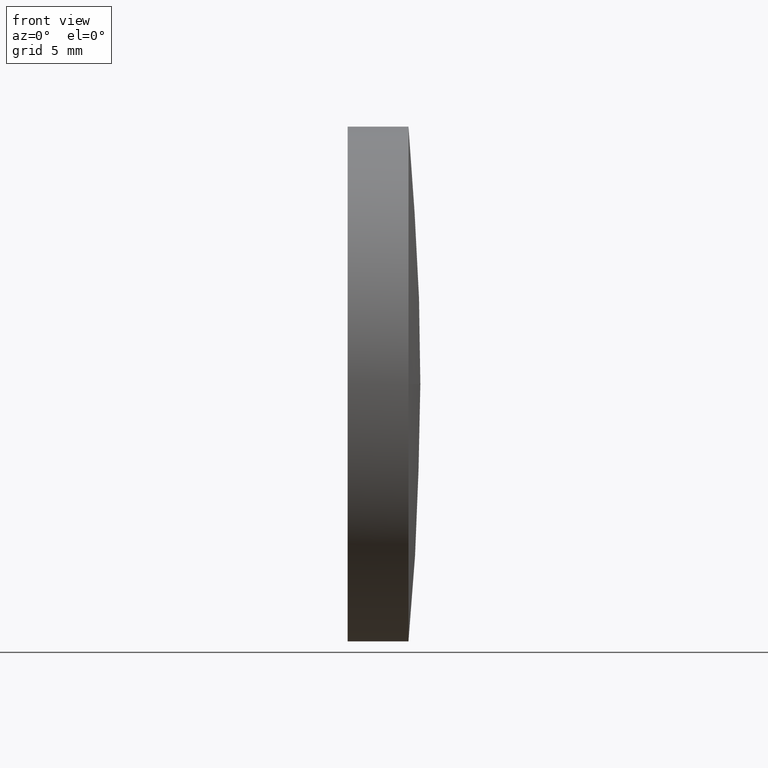
[diagram: clean part render]
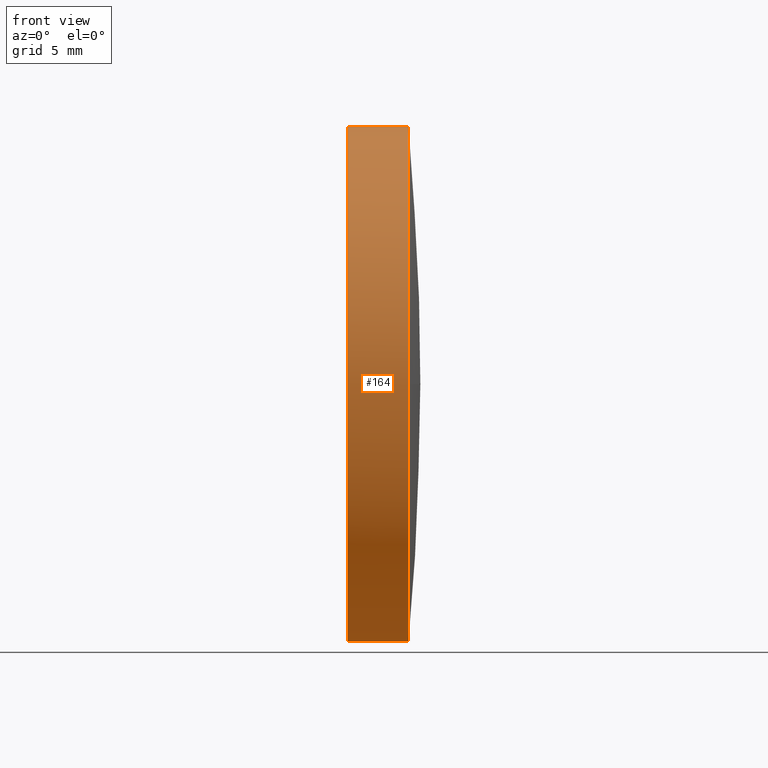
[diagram: same view with one face highlighted and labeled with its STEP entity id]
A machine part, front view. The second image highlights one B-rep face of the part: STEP entity #164.
In plain terms, the highlighted cylindrical surface (partial cylindrical patch) has radius 12.7 mm, axis along (-1, -0, -0).
Its self-contained STEP definition (entity closure, byte-faithful):
#4 = AXIS2_PLACEMENT_3D ( 'NONE', #93, #135, #31 ) ;
#5 = LINE ( 'NONE', #76, #54 ) ;
#7 = EDGE_CURVE ( 'NONE', #142, #44, #5, .T. ) ;
#9 = ORIENTED_EDGE ( 'NONE', *, *, #24, .T. ) ;
#13 = CARTESIAN_POINT ( 'NONE',  ( 118.7740777732635700, 65.23355492641219700, 0.0000000000000000000 ) ) ;
#16 = CIRCLE ( 'NONE', #138, 12.70000000000000300 ) ;
#20 = VERTEX_POINT ( 'NONE', #163 ) ;
#24 = EDGE_CURVE ( 'NONE', #80, #119, #141, .T. ) ;
#27 = DIRECTION ( 'NONE',  ( -1.000000000000000000, -0.0000000000000000000, -0.0000000000000000000 ) ) ;
#31 = DIRECTION ( 'NONE',  ( 0.0000000000000000000, 0.0000000000000000000, 1.000000000000000000 ) ) ;
#36 = EDGE_CURVE ( 'NONE', #80, #20, #108, .T. ) ;
#38 = DIRECTION ( 'NONE',  ( 0.0000000000000000000, 0.0000000000000000000, 1.000000000000000000 ) ) ;
#39 = CARTESIAN_POINT ( 'NONE',  ( 115.7736064308381300, 65.23355492641219700, 12.70000000000000300 ) ) ;
#40 = CARTESIAN_POINT ( 'NONE',  ( 110.1653732284884500, 65.23355492641219700, -12.70000000000000300 ) ) ;
#44 = VERTEX_POINT ( 'NONE', #39 ) ;
#49 = ORIENTED_EDGE ( 'NONE', *, *, #36, .F. ) ;
#53 = CARTESIAN_POINT ( 'NONE',  ( 118.7740777732635700, 65.23355492641219700, 0.0000000000000000000 ) ) ;
#54 = VECTOR ( 'NONE', #149, 1000.000000000000000 ) ;
#57 = DIRECTION ( 'NONE',  ( 0.0000000000000000000, 0.0000000000000000000, 1.000000000000000000 ) ) ;
#71 = EDGE_CURVE ( 'NONE', #20, #44, #16, .T. ) ;
#74 = DIRECTION ( 'NONE',  ( -1.000000000000000000, -0.0000000000000000000, -0.0000000000000000000 ) ) ;
#75 = CIRCLE ( 'NONE', #166, 12.70000000000000300 ) ;
#76 = CARTESIAN_POINT ( 'NONE',  ( 110.1653732284884500, 65.23355492641219700, 12.70000000000000300 ) ) ;
#80 = VERTEX_POINT ( 'NONE', #145 ) ;
#93 = CARTESIAN_POINT ( 'NONE',  ( 110.1653732284884500, 65.23355492641219700, 0.0000000000000000000 ) ) ;
#99 = EDGE_CURVE ( 'NONE', #119, #142, #75, .T. ) ;
#103 = VECTOR ( 'NONE', #74, 1000.000000000000000 ) ;
#107 = CARTESIAN_POINT ( 'NONE',  ( 118.7740777732635700, 65.23355492641219700, 12.70000000000000300 ) ) ;
#108 = LINE ( 'NONE', #40, #103 ) ;
#111 = DIRECTION ( 'NONE',  ( -1.000000000000000000, -0.0000000000000000000, -0.0000000000000000000 ) ) ;
#112 = AXIS2_PLACEMENT_3D ( 'NONE', #53, #180, #38 ) ;
#119 = VERTEX_POINT ( 'NONE', #124 ) ;
#121 = DIRECTION ( 'NONE',  ( 0.0000000000000000000, 0.0000000000000000000, 1.000000000000000000 ) ) ;
#124 = CARTESIAN_POINT ( 'NONE',  ( 118.7740777732635700, 52.53355492641231500, 0.0000000000000000000 ) ) ;
#131 = FACE_OUTER_BOUND ( 'NONE', #153, .T. ) ;
#135 = DIRECTION ( 'NONE',  ( -1.000000000000000000, -0.0000000000000000000, -0.0000000000000000000 ) ) ;
#138 = AXIS2_PLACEMENT_3D ( 'NONE', #181, #27, #121 ) ;
#141 = CIRCLE ( 'NONE', #112, 12.70000000000000300 ) ;
#142 = VERTEX_POINT ( 'NONE', #107 ) ;
#144 = ORIENTED_EDGE ( 'NONE', *, *, #71, .F. ) ;
#145 = CARTESIAN_POINT ( 'NONE',  ( 118.7740777732635700, 65.23355492641219700, -12.70000000000000300 ) ) ;
#147 = ORIENTED_EDGE ( 'NONE', *, *, #7, .T. ) ;
#149 = DIRECTION ( 'NONE',  ( -1.000000000000000000, -0.0000000000000000000, -0.0000000000000000000 ) ) ;
#153 = EDGE_LOOP ( 'NONE', ( #49, #9, #176, #147, #144 ) ) ;
#163 = CARTESIAN_POINT ( 'NONE',  ( 115.7736064308381300, 65.23355492641219700, -12.70000000000000300 ) ) ;
#164 = ADVANCED_FACE ( 'NONE', ( #131 ), #167, .T. ) ;
#166 = AXIS2_PLACEMENT_3D ( 'NONE', #13, #111, #57 ) ;
#167 = CYLINDRICAL_SURFACE ( 'NONE', #4, 12.70000000000000300 ) ;
#176 = ORIENTED_EDGE ( 'NONE', *, *, #99, .T. ) ;
#180 = DIRECTION ( 'NONE',  ( -1.000000000000000000, -0.0000000000000000000, -0.0000000000000000000 ) ) ;
#181 = CARTESIAN_POINT ( 'NONE',  ( 115.7736064308381300, 65.23355492641219700, 0.0000000000000000000 ) ) ;